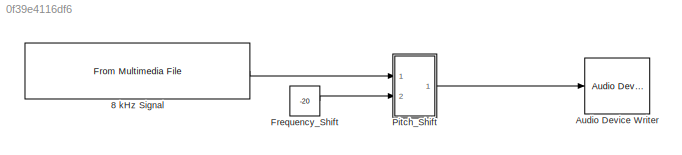
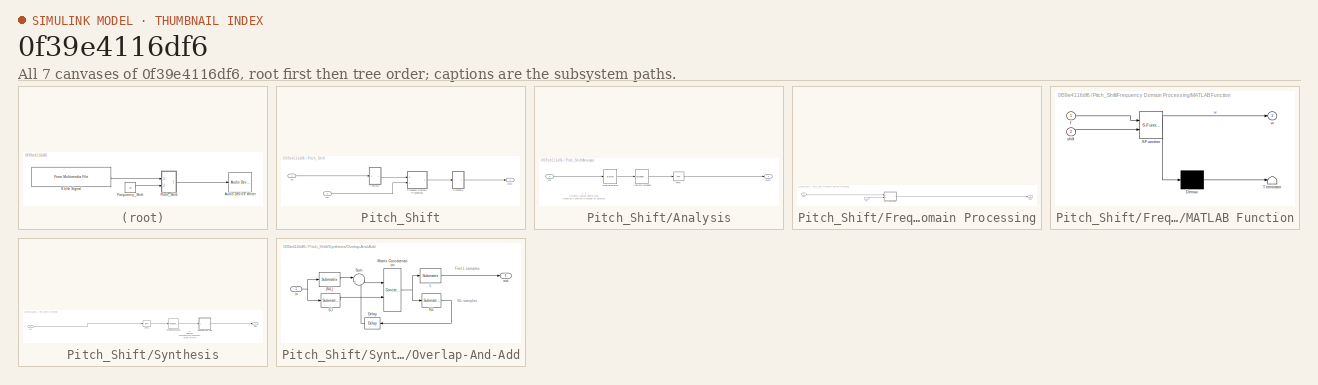
[diagram: thumbnail index - all 7 canvases of the model, root first then tree order]
MODEL slx_0f39e4116df6
KIND model
CONFIG AbsTol = auto
CONFIG EnableMultiTasking = off
CONFIG FixedStep = auto
CONFIG MaxStep = auto
CONFIG MinStep = auto
CONFIG RelTol = 1e-3
CONFIG SampleTimeConstraint = Unconstrained
CONFIG Solver = VariableStepAuto
CONFIG SolverName = VariableStepAuto
CONFIG StartTime = 0.0
CONFIG StopTime = 10.0
BLOCK [Reference] 8 kHz Signal  REF=dspvision/From Multimedia File
  Ports = [0, 1]
  SourceBlock = dspvision/From Multimedia File
  SourceProductBaseCode = VP
  SourceProductName = Computer Vision System Toolbox
  SourceType = From Multimedia File
BLOCK [Reference] Audio Device Writer  REF=dspsnks4/Audio Device
Writer
  Ports = [1]
  SourceBlock = dspsnks4/Audio Device\nWriter
  SourceProductBaseCode = DS
  SourceProductName = DSP System Toolbox
  SourceType = Audio Device Writer
BLOCK [Constant] Frequency_Shift
  OutDataTypeStr = int16
  Value = -20
BLOCK [SubSystem] Pitch_Shift
  Ports = [2, 1]
  RequestExecContextInheritance = off
BLOCK [SubSystem] Pitch_Shift/Analysis
  Ports = [1, 1]
  RequestExecContextInheritance = off
BLOCK [Reference] Pitch_Shift/Analysis/Analysis Window  REF=dspsigops/Window
Function
  Ports = [1, 1]
  SourceBlock = dspsigops/Window\nFunction
  SourceProductBaseCode = DS
  SourceProductName = DSP System Toolbox
  SourceType = Window Function
BLOCK [Reference] Pitch_Shift/Analysis/FFT1  REF=dspxfrm3/FFT
  Ports = [1, 1]
  SourceBlock = dspxfrm3/FFT
  SourceProductBaseCode = DS
  SourceProductName = DSP System Toolbox
  SourceType = FFT
BLOCK [Inport] Pitch_Shift/Analysis/In1
  IconDisplay = Port number
BLOCK [Outport] Pitch_Shift/Analysis/Out1
  IconDisplay = Port number
BLOCK [Buffer] Pitch_Shift/Analysis/Overlap Buffer
  N = 1024
  OutputFrames = off
  V = 1024 * 3/4
BLOCK [SubSystem] Pitch_Shift/Frequency Domain Processing
  Ports = [2, 1]
  RequestExecContextInheritance = off
BLOCK [Inport] Pitch_Shift/Frequency Domain Processing/In1
  IconDisplay = Port number
BLOCK [Inport] Pitch_Shift/Frequency Domain Processing/In2
  IconDisplay = Port number
  Port = 2
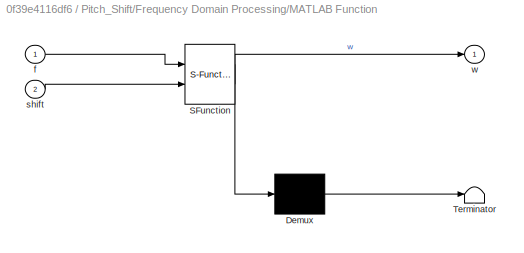
BLOCK [SubSystem] Pitch_Shift/Frequency Domain Processing/MATLAB Function
  ErrorFcn = Stateflow.Translate.translate
  PermitHierarchicalResolution = ExplicitOnly
  Ports = [2, 1]
  RequestExecContextInheritance = off
  SFBlockType = MATLAB Function
  TreatAsAtomicUnit = on
BLOCK [Demux] Pitch_Shift/Frequency Domain Processing/MATLAB Function/ Demux 
  Outputs = 1
  Ports = [1, 1]
BLOCK [S-Function] Pitch_Shift/Frequency Domain Processing/MATLAB Function/ SFunction 
  EnableBusSupport = off
  FunctionName = sf_sfun
  PortCounts = [2 2]
  Ports = [2, 2]
  SFcnIsStateOwnerBlock = off
  SFunctionDeploymentMode = off
  Tag = Stateflow S-Function lab5 2
BLOCK [Terminator] Pitch_Shift/Frequency Domain Processing/MATLAB Function/ Terminator 
BLOCK [Inport] Pitch_Shift/Frequency Domain Processing/MATLAB Function/f
  IconDisplay = Port number
BLOCK [Inport] Pitch_Shift/Frequency Domain Processing/MATLAB Function/shift
  IconDisplay = Port number
  Port = 2
BLOCK [Outport] Pitch_Shift/Frequency Domain Processing/MATLAB Function/w
  IconDisplay = Port number
BLOCK [Outport] Pitch_Shift/Frequency Domain Processing/Out1
  IconDisplay = Port number
BLOCK [Inport] Pitch_Shift/In1
  IconDisplay = Port number
BLOCK [Inport] Pitch_Shift/In2
  IconDisplay = Port number
  Port = 2
BLOCK [Outport] Pitch_Shift/Out1
  IconDisplay = Port number
BLOCK [SubSystem] Pitch_Shift/Synthesis
  Ports = [1, 1]
  RequestExecContextInheritance = off
BLOCK [Reference] Pitch_Shift/Synthesis/IFFT2  REF=dspxfrm3/IFFT
  Ports = [1, 1]
  SourceBlock = dspxfrm3/IFFT
  SourceProductBaseCode = DS
  SourceProductName = DSP System Toolbox
  SourceType = IFFT
BLOCK [Inport] Pitch_Shift/Synthesis/In1
  IconDisplay = Port number
BLOCK [Outport] Pitch_Shift/Synthesis/Out1
  IconDisplay = Port number
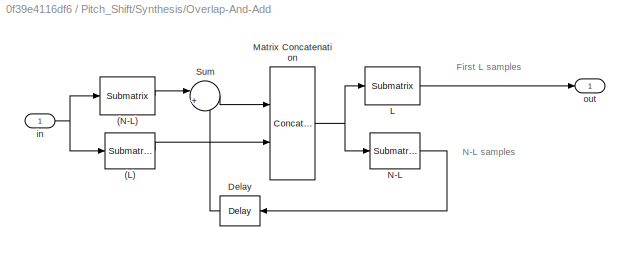
BLOCK [SubSystem] Pitch_Shift/Synthesis/Overlap-And-Add
  Ports = [1, 1]
  RequestExecContextInheritance = off
BLOCK [Reference] Pitch_Shift/Synthesis/Overlap-And-Add/(L)  REF=dspmtrx3/Submatrix
  Ports = [1, 1]
  SourceBlock = dspmtrx3/Submatrix
  SourceProductBaseCode = DS
  SourceProductName = DSP System Toolbox
  SourceType = Submatrix
BLOCK [Reference] Pitch_Shift/Synthesis/Overlap-And-Add/(N-L)  REF=dspmtrx3/Submatrix
  Ports = [1, 1]
  SourceBlock = dspmtrx3/Submatrix
  SourceProductBaseCode = DS
  SourceProductName = DSP System Toolbox
  SourceType = Submatrix
BLOCK [Delay] Pitch_Shift/Synthesis/Overlap-And-Add/Delay
  DelayLength = 1
  InitialCondition = 0
  InputPortMap = u0
  Ports = [1, 1]
  UserDataPersistent = on
BLOCK [Reference] Pitch_Shift/Synthesis/Overlap-And-Add/L  REF=dspmtrx3/Submatrix
  Ports = [1, 1]
  SourceBlock = dspmtrx3/Submatrix
  SourceProductBaseCode = DS
  SourceProductName = DSP System Toolbox
  SourceType = Submatrix
BLOCK [Concatenate] Pitch_Shift/Synthesis/Overlap-And-Add/Matrix Concatenation
  Mode = Multidimensional array
  Ports = [2, 1]
BLOCK [Reference] Pitch_Shift/Synthesis/Overlap-And-Add/N-L  REF=dspmtrx3/Submatrix
  Ports = [1, 1]
  SourceBlock = dspmtrx3/Submatrix
  SourceProductBaseCode = DS
  SourceProductName = DSP System Toolbox
  SourceType = Submatrix
BLOCK [Sum] Pitch_Shift/Synthesis/Overlap-And-Add/Sum
  IconShape = round
  Inputs = |++
  Ports = [2, 1]
BLOCK [Inport] Pitch_Shift/Synthesis/Overlap-And-Add/in
  IconDisplay = Port number
BLOCK [Outport] Pitch_Shift/Synthesis/Overlap-And-Add/out
  IconDisplay = Port number
BLOCK [Reference] Pitch_Shift/Synthesis/Synthesis Window1  REF=dspsigops/Window
Function
  Ports = [1, 1]
  SourceBlock = dspsigops/Window\nFunction
  SourceProductBaseCode = DS
  SourceProductName = DSP System Toolbox
  SourceType = Window Function
ANNOTATION Pitch_Shift/Analysis: A.1 Nframe = output buffer size Noverlap = overlap in number of samples
ANNOTATION Pitch_Shift/Synthesis: A.2 Setting Note: New points in each frame must be: Nframe - Noverlap
ANNOTATION Pitch_Shift/Synthesis/Overlap-And-Add: First L samples
ANNOTATION Pitch_Shift/Synthesis/Overlap-And-Add: N-L samples
LINE 8 kHz Signal:1 -> Pitch_Shift:1
LINE Frequency_Shift:1 -> Pitch_Shift:2
LINE Pitch_Shift/Analysis/Analysis Window:1 -> Pitch_Shift/Analysis/FFT1:1
LINE Pitch_Shift/Analysis/FFT1:1 -> Pitch_Shift/Analysis/Out1:1
LINE Pitch_Shift/Analysis/In1:1 -> Pitch_Shift/Analysis/Overlap Buffer:1
LINE Pitch_Shift/Analysis/Overlap Buffer:1 -> Pitch_Shift/Analysis/Analysis Window:1
LINE Pitch_Shift/Analysis:1 -> Pitch_Shift/Frequency Domain Processing:1
LINE Pitch_Shift/Frequency Domain Processing/In1:1 -> Pitch_Shift/Frequency Domain Processing/MATLAB Function:1
LINE Pitch_Shift/Frequency Domain Processing/In2:1 -> Pitch_Shift/Frequency Domain Processing/MATLAB Function:2
LINE Pitch_Shift/Frequency Domain Processing/MATLAB Function:1 -> Pitch_Shift/Frequency Domain Processing/Out1:1
LINE Pitch_Shift/Frequency Domain Processing:1 -> Pitch_Shift/Synthesis:1
LINE Pitch_Shift/In1:1 -> Pitch_Shift/Analysis:1
LINE Pitch_Shift/In2:1 -> Pitch_Shift/Frequency Domain Processing:2
LINE Pitch_Shift/Synthesis/IFFT2:1 -> Pitch_Shift/Synthesis/Synthesis Window1:1
LINE Pitch_Shift/Synthesis/In1:1 -> Pitch_Shift/Synthesis/IFFT2:1
LINE Pitch_Shift/Synthesis/Overlap-And-Add/(L):1 -> Pitch_Shift/Synthesis/Overlap-And-Add/Matrix Concatenation:2
LINE Pitch_Shift/Synthesis/Overlap-And-Add/(N-L):1 -> Pitch_Shift/Synthesis/Overlap-And-Add/Sum:1
LINE Pitch_Shift/Synthesis/Overlap-And-Add/Delay:1 -> Pitch_Shift/Synthesis/Overlap-And-Add/Sum:2
LINE Pitch_Shift/Synthesis/Overlap-And-Add/L:1 -> Pitch_Shift/Synthesis/Overlap-And-Add/out:1
NET Pitch_Shift/Synthesis/Overlap-And-Add/Matrix Concatenation:1 -> Pitch_Shift/Synthesis/Overlap-And-Add/L:1, Pitch_Shift/Synthesis/Overlap-And-Add/N-L:1
LINE Pitch_Shift/Synthesis/Overlap-And-Add/N-L:1 -> Pitch_Shift/Synthesis/Overlap-And-Add/Delay:1
LINE Pitch_Shift/Synthesis/Overlap-And-Add/Sum:1 -> Pitch_Shift/Synthesis/Overlap-And-Add/Matrix Concatenation:1
NET Pitch_Shift/Synthesis/Overlap-And-Add/in:1 -> Pitch_Shift/Synthesis/Overlap-And-Add/(L):1, Pitch_Shift/Synthesis/Overlap-And-Add/(N-L):1
LINE Pitch_Shift/Synthesis/Overlap-And-Add:1 -> Pitch_Shift/Synthesis/Out1:1
LINE Pitch_Shift/Synthesis/Synthesis Window1:1 -> Pitch_Shift/Synthesis/Overlap-And-Add:1
LINE Pitch_Shift/Synthesis:1 -> Pitch_Shift/Out1:1
LINE Pitch_Shift:1 -> Audio Device Writer:1
note: NET lines group one-source signal fan-out (src -> all destinations, sorted); 1:1 wires keep LINE
CHART Pitch_Shift/Frequency Domain
Processing/MATLAB Function states=1 transitions=1
  STATE_LABEL 'eML_blk_kernel()'
  STATE_LABEL 'SCRIPT:\nfunction w = fcn(f,shift)\n\nN = length(f);\nw = complex(zeros(N,1));\n\nif shift == 0\n    w = f;\nelse\n    \n    zf = f(1);            % dc term\n    pf = f(2:N/2);        % positive frequencies\n    lf = f(N/2 + 1);      % last positive frequency\n    nf = f(N/2 + 2:N);  % negative frequencies (paired with positive frequencies)\n    \n    w(1) = zf;\n    w(N/2+1) = complex(0);                   % jus...<+1221ch>'
